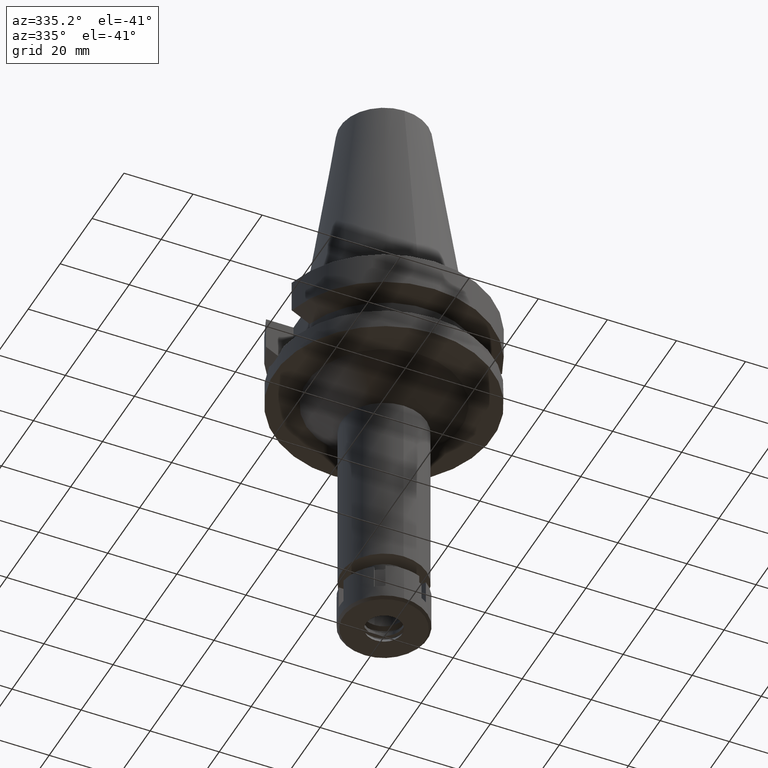
[diagram: clean part render]
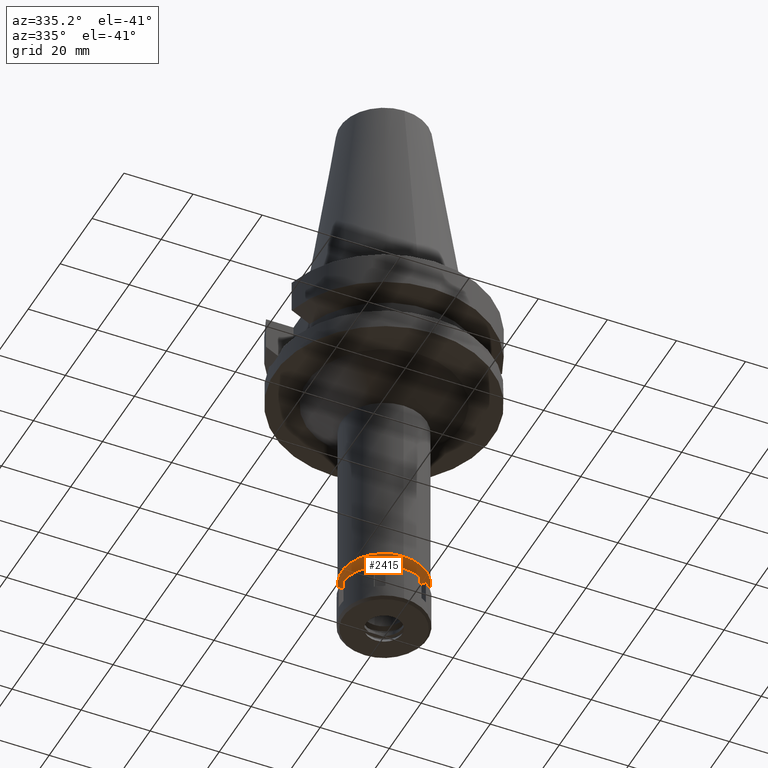
[diagram: same view with one face highlighted and labeled with its STEP entity id]
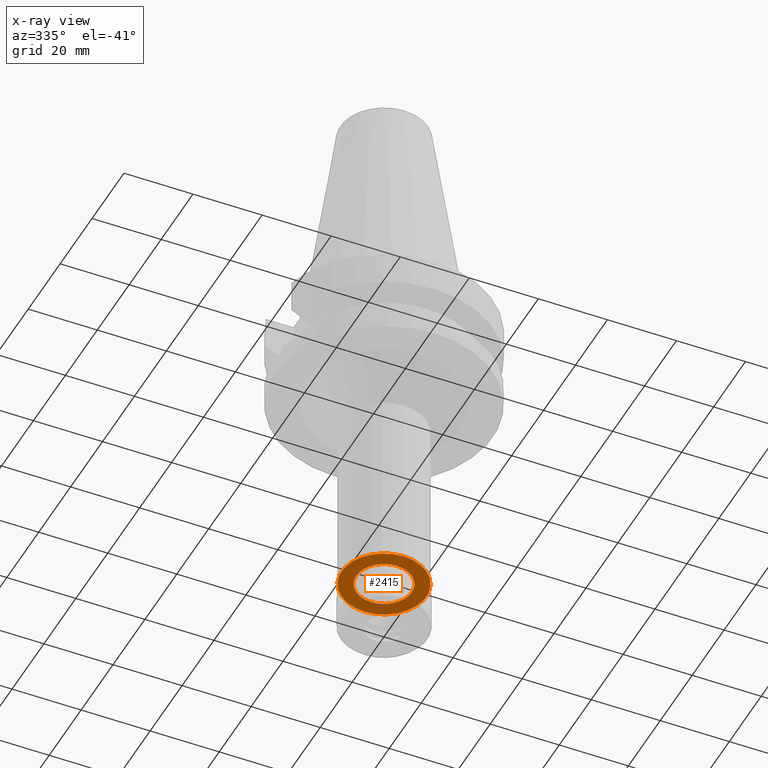
[diagram: x-ray of the same camera — body ghosted, the highlighted face saturated]
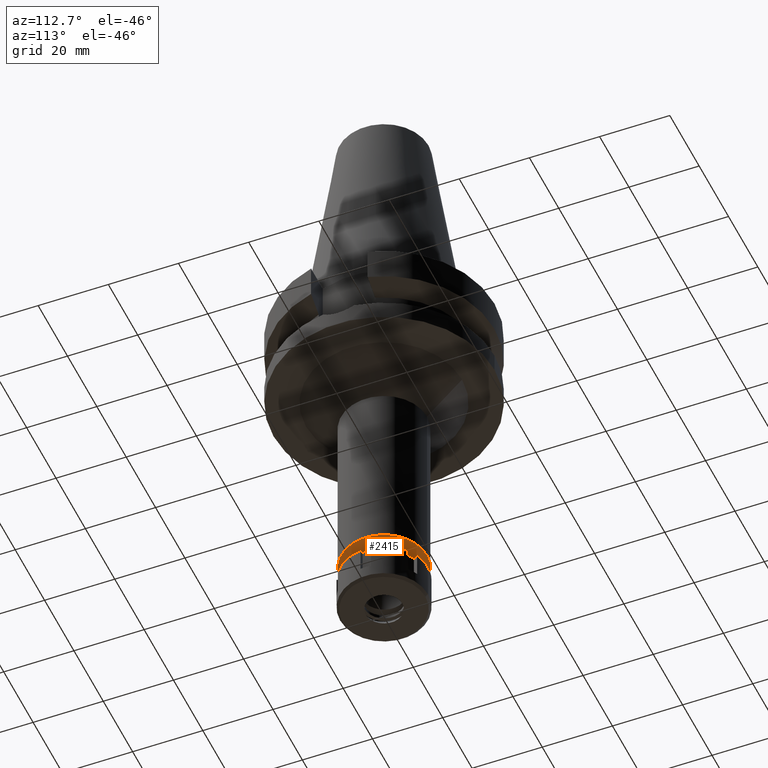
[diagram: same view with one face highlighted and labeled with its STEP entity id]
A machine part, auxiliary view. The second image highlights one B-rep face of the part: STEP entity #2415.
The next image is the same camera in x-ray: the body ghosted, the highlighted face saturated — about 26% of this face is hidden behind the body in this view.
A second angle (auxiliary view) of the same face is appended — the face is thin or edge-on in the first view.
In plain terms, the highlighted planar face has unit normal (0, 0, -1).
Its self-contained STEP definition (entity closure, byte-faithful):
#20 = ORIENTED_EDGE ( 'NONE', *, *, #2514, .F. ) ;
#146 = VERTEX_POINT ( 'NONE', #1042 ) ;
#221 = ORIENTED_EDGE ( 'NONE', *, *, #2752, .F. ) ;
#366 = DIRECTION ( 'NONE',  ( 0.0000000000000000000, -1.000000000000000000, 0.0000000000000000000 ) ) ;
#504 = CIRCLE ( 'NONE', #2565, 8.000000000000000000 ) ;
#614 = AXIS2_PLACEMENT_3D ( 'NONE', #1682, #2020, #1703 ) ;
#648 = DIRECTION ( 'NONE',  ( 0.0000000000000000000, 0.0000000000000000000, 1.000000000000000000 ) ) ;
#677 = AXIS2_PLACEMENT_3D ( 'NONE', #3171, #648, #1871 ) ;
#844 = FACE_BOUND ( 'NONE', #3304, .T. ) ;
#910 = CIRCLE ( 'NONE', #1619, 12.25000000000000000 ) ;
#920 = VERTEX_POINT ( 'NONE', #971 ) ;
#955 = CARTESIAN_POINT ( 'NONE',  ( 0.0000000000000000000, 2.126231772679999832E-14, -89.50000000000000000 ) ) ;
#971 = CARTESIAN_POINT ( 'NONE',  ( 0.0000000000000000000, 8.000000000000000000, -89.50000000000000000 ) ) ;
#1028 = VERTEX_POINT ( 'NONE', #1963 ) ;
#1042 = CARTESIAN_POINT ( 'NONE',  ( 0.0000000000000000000, 12.25000000000000000, -89.50000000000000000 ) ) ;
#1219 = VERTEX_POINT ( 'NONE', #2237 ) ;
#1265 = DIRECTION ( 'NONE',  ( 0.0000000000000000000, 1.000000000000000000, 0.0000000000000000000 ) ) ;
#1540 = ORIENTED_EDGE ( 'NONE', *, *, #3306, .F. ) ;
#1619 = AXIS2_PLACEMENT_3D ( 'NONE', #3399, #2870, #366 ) ;
#1682 = CARTESIAN_POINT ( 'NONE',  ( 0.0000000000000000000, 0.0000000000000000000, -89.50000000000000000 ) ) ;
#1703 = DIRECTION ( 'NONE',  ( 0.0000000000000000000, -1.000000000000000000, 0.0000000000000000000 ) ) ;
#1708 = ORIENTED_EDGE ( 'NONE', *, *, #2998, .F. ) ;
#1871 = DIRECTION ( 'NONE',  ( 0.0000000000000000000, 1.000000000000000000, 0.0000000000000000000 ) ) ;
#1949 = DIRECTION ( 'NONE',  ( 0.0000000000000000000, 0.0000000000000000000, -1.000000000000000000 ) ) ;
#1963 = CARTESIAN_POINT ( 'NONE',  ( 0.0000000000000000000, -12.25000000000000000, -89.50000000000000000 ) ) ;
#1967 = PLANE ( 'NONE',  #614 ) ;
#2020 = DIRECTION ( 'NONE',  ( 0.0000000000000000000, 0.0000000000000000000, -1.000000000000000000 ) ) ;
#2237 = CARTESIAN_POINT ( 'NONE',  ( 0.0000000000000000000, -8.000000000000000000, -89.50000000000000000 ) ) ;
#2271 = CIRCLE ( 'NONE', #677, 12.25000000000000000 ) ;
#2280 = FACE_OUTER_BOUND ( 'NONE', #2290, .T. ) ;
#2290 = EDGE_LOOP ( 'NONE', ( #1708, #1540 ) ) ;
#2415 = ADVANCED_FACE ( 'NONE', ( #2280, #844 ), #1967, .T. ) ;
#2490 = DIRECTION ( 'NONE',  ( 0.0000000000000000000, -1.000000000000000000, 0.0000000000000000000 ) ) ;
#2514 = EDGE_CURVE ( 'NONE', #920, #1219, #2973, .T. ) ;
#2565 = AXIS2_PLACEMENT_3D ( 'NONE', #2822, #1949, #2490 ) ;
#2739 = AXIS2_PLACEMENT_3D ( 'NONE', #955, #3524, #1265 ) ;
#2752 = EDGE_CURVE ( 'NONE', #1219, #920, #504, .T. ) ;
#2822 = CARTESIAN_POINT ( 'NONE',  ( 0.0000000000000000000, 2.126231772679999832E-14, -89.50000000000000000 ) ) ;
#2870 = DIRECTION ( 'NONE',  ( 0.0000000000000000000, 0.0000000000000000000, 1.000000000000000000 ) ) ;
#2973 = CIRCLE ( 'NONE', #2739, 8.000000000000000000 ) ;
#2998 = EDGE_CURVE ( 'NONE', #146, #1028, #2271, .T. ) ;
#3171 = CARTESIAN_POINT ( 'NONE',  ( 0.0000000000000000000, 2.126231772679999832E-14, -89.50000000000000000 ) ) ;
#3304 = EDGE_LOOP ( 'NONE', ( #20, #221 ) ) ;
#3306 = EDGE_CURVE ( 'NONE', #1028, #146, #910, .T. ) ;
#3399 = CARTESIAN_POINT ( 'NONE',  ( 0.0000000000000000000, 2.126231772679999832E-14, -89.50000000000000000 ) ) ;
#3524 = DIRECTION ( 'NONE',  ( 0.0000000000000000000, 0.0000000000000000000, -1.000000000000000000 ) ) ;